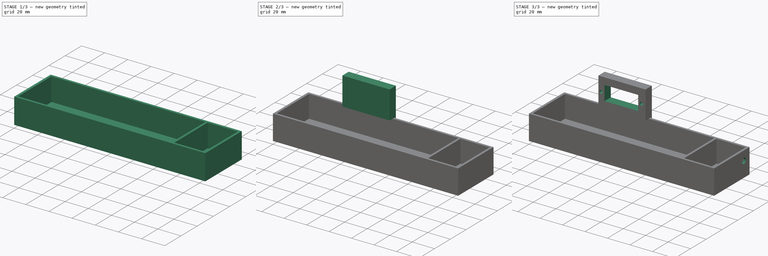
[diagram: build sequence overview — one tinted view per stage of 3, left to right]
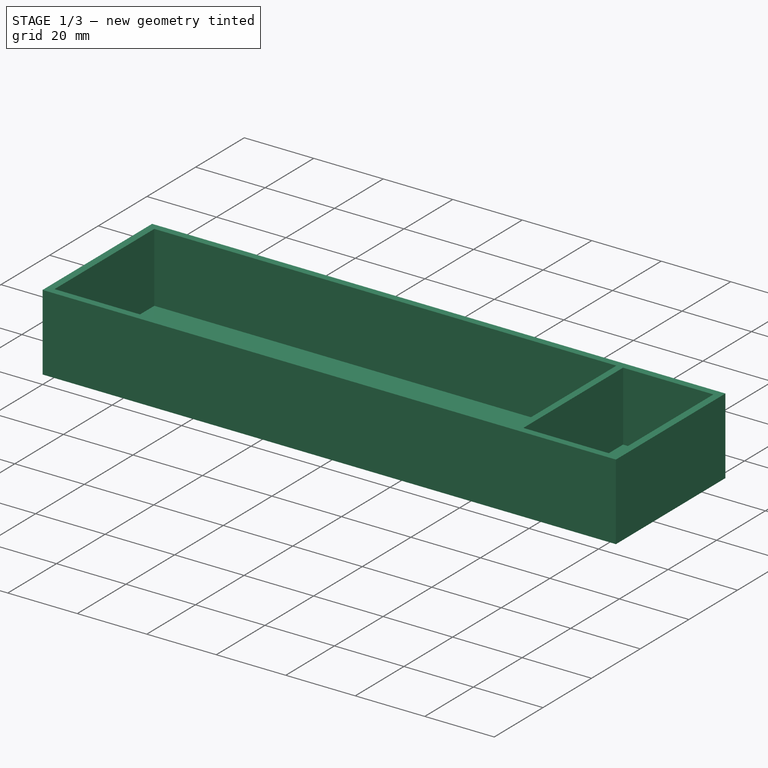
[diagram: stage 1 of 3 — iso view after this stage's code; geometry added in this stage tinted green]
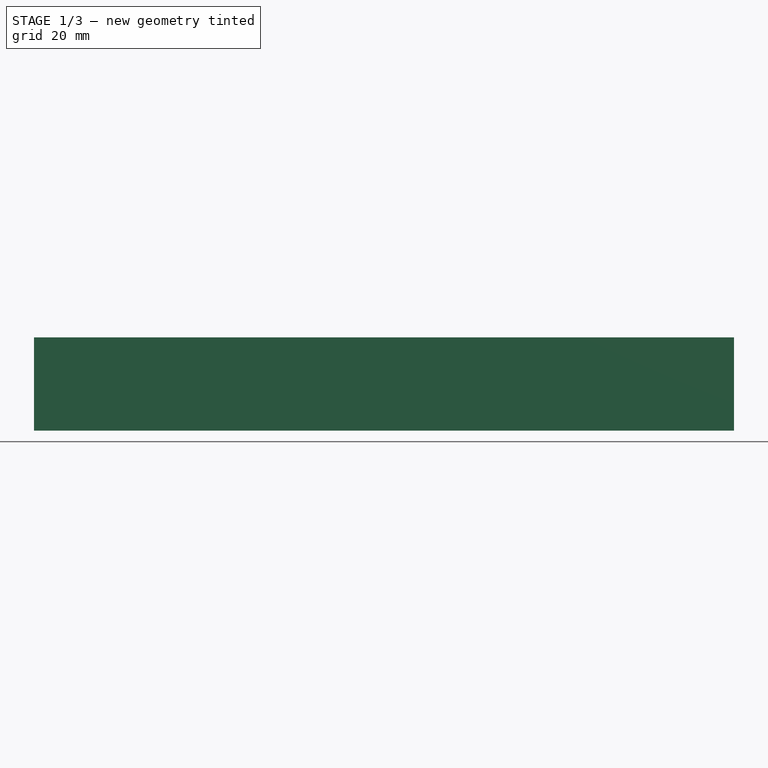
[diagram: stage 1 of 3 — front view after this stage's code; geometry added in this stage tinted green]
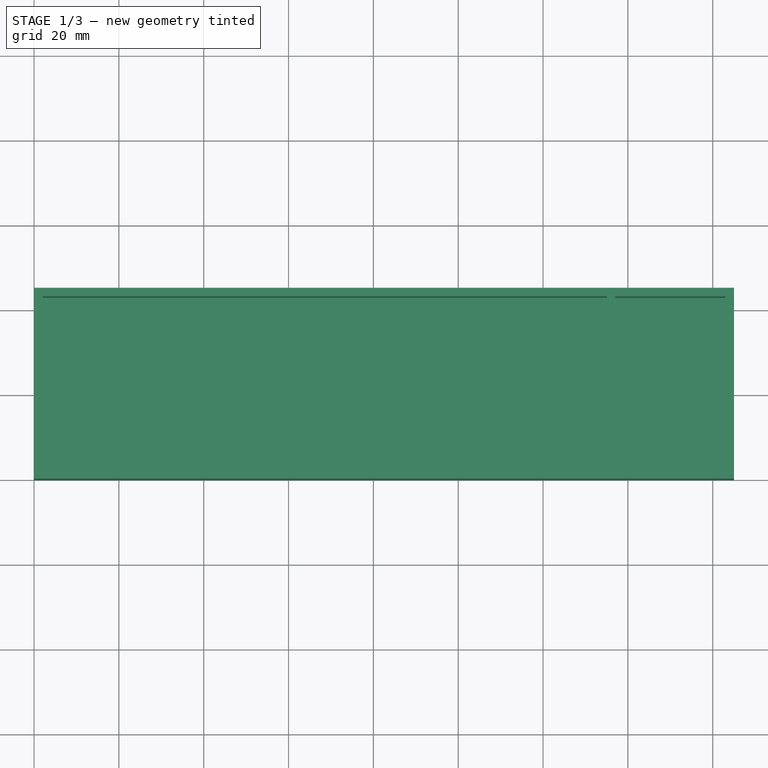
[diagram: stage 1 of 3 — top view after this stage's code; geometry added in this stage tinted green]
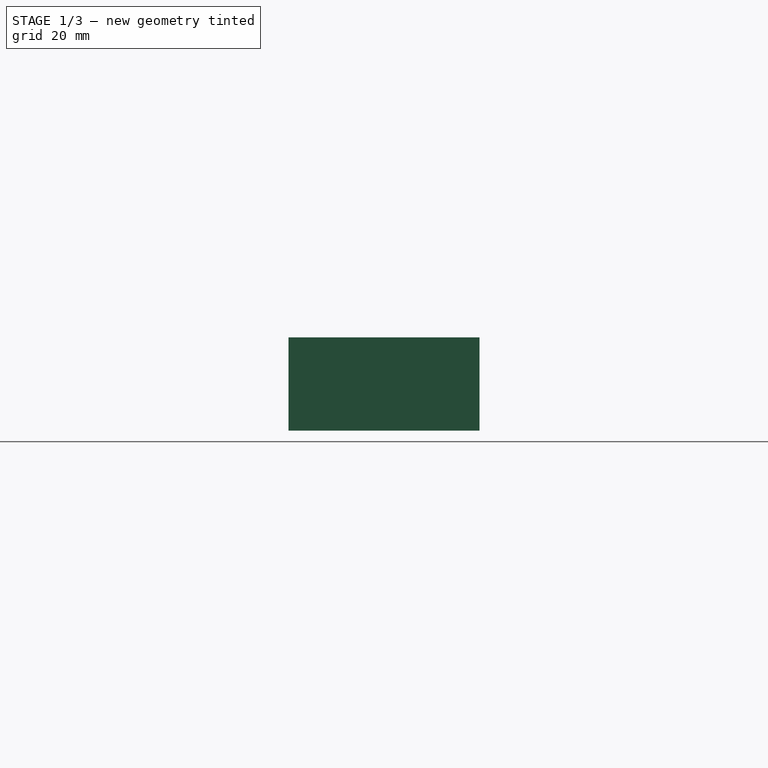
[diagram: stage 1 of 3 — right view after this stage's code; geometry added in this stage tinted green]
FCSTD DOCUMENT  (FreeCAD 0.16R6706 (Git))
Label: shade
License: All rights reserved
LicenseURL: http://en.wikipedia.org/wiki/All_rights_reserved
objects: Sketcher::SketchObject×8, PartDesign::Pocket×5, PartDesign::Pad×3
note: 24 computed .brp shape members not serialized (recipe doc carries the construction recipe); baked Part::Feature solids carry a one-line shape summary decoded from their .brp

FEATURE [Sketcher::SketchObject] Sketch
  sketch-geometry (4):
    g0: LineSegment StartX=0 StartY=45 StartZ=0 EndX=165 EndY=45 EndZ=0
    g1: LineSegment StartX=165 StartY=45 StartZ=0 EndX=165 EndY=0 EndZ=0
    g2: LineSegment StartX=165 StartY=0 StartZ=0 EndX=0 EndY=0 EndZ=0
    g3: LineSegment StartX=0 StartY=0 StartZ=0 EndX=0 EndY=45 EndZ=0
  constraints (11):
    c: Coincident(g0,g1)
    c: Coincident(g1,g2)
    c: Coincident(g2,g3)
    c: Coincident(g3,g0)
    c: Horizontal(g0)
    c: Horizontal(g2)
    c: Vertical(g1)
    c: Vertical(g3)
    c: Coincident(g2,g-1)
    c: DistanceX(g0,g0) = 165
    c: DistanceY(g1,g1) = 45
FEATURE [PartDesign::Pad] Pad
  Length = 22
  Length2 = 100
  Sketch = -> Sketch
  Type = 0
FEATURE [Sketcher::SketchObject] Sketch001
  Placement = pos=(0,0,22) rot=(0,0,1;0rad)
  Support = -> Pad [Face6]
  sketch-geometry (4):
    g0: LineSegment StartX=2.04825 StartY=42.9889 StartZ=0 EndX=135.048 EndY=42.9889 EndZ=0
    g1: LineSegment StartX=135.048 StartY=42.9889 StartZ=0 EndX=135.048 EndY=1.9889 EndZ=0
    g2: LineSegment StartX=135.048 StartY=1.9889 StartZ=0 EndX=2.04825 EndY=1.9889 EndZ=0
    g3: LineSegment StartX=2.04825 StartY=1.9889 StartZ=0 EndX=2.04825 EndY=42.9889 EndZ=0
  constraints (10):
    c: Coincident(g0,g1)
    c: Coincident(g1,g2)
    c: Coincident(g2,g3)
    c: Coincident(g3,g0)
    c: Horizontal(g0)
    c: Horizontal(g2)
    c: Vertical(g1)
    c: Vertical(g3)
    c: DistanceX(g0,g0) = 133
    c: DistanceY(g1,g1) = 41
FEATURE [PartDesign::Pocket] Pocket
  Length = 20
  Sketch = -> Sketch001
  Type = 0
FEATURE [Sketcher::SketchObject] Sketch002
  Placement = pos=(0,0,22) rot=(0,0,1;0rad)
  Support = -> Pocket [Face5]
  sketch-geometry (4):
    g0: LineSegment StartX=136.98 StartY=42.958 StartZ=0 EndX=162.98 EndY=42.958 EndZ=0
    g1: LineSegment StartX=162.98 StartY=42.958 StartZ=0 EndX=162.98 EndY=1.95803 EndZ=0
    g2: LineSegment StartX=162.98 StartY=1.95803 StartZ=0 EndX=136.98 EndY=1.95803 EndZ=0
    g3: LineSegment StartX=136.98 StartY=1.95803 StartZ=0 EndX=136.98 EndY=42.958 EndZ=0
  constraints (10):
    c: Coincident(g0,g1)
    c: Coincident(g1,g2)
    c: Coincident(g2,g3)
    c: Coincident(g3,g0)
    c: Horizontal(g0)
    c: Horizontal(g2)
    c: Vertical(g1)
    c: Vertical(g3)
    c: DistanceX(g0,g0) = 26
    c: DistanceY(g3,g3) = 41
FEATURE [PartDesign::Pocket] Pocket001
  Length = 20
  Sketch = -> Sketch002
  Type = 0
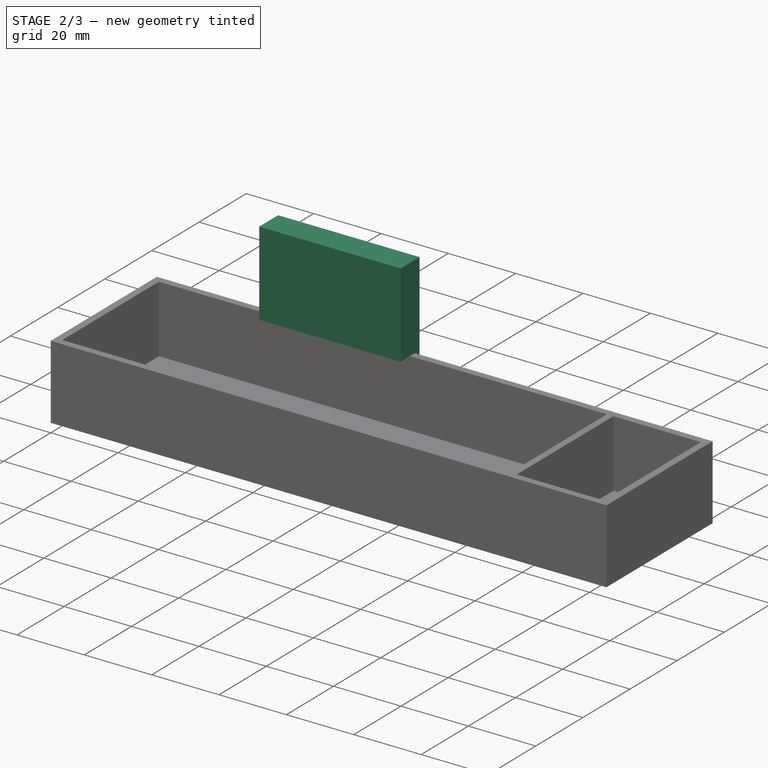
[diagram: stage 2 of 3 — iso view after this stage's code; geometry added in this stage tinted green]
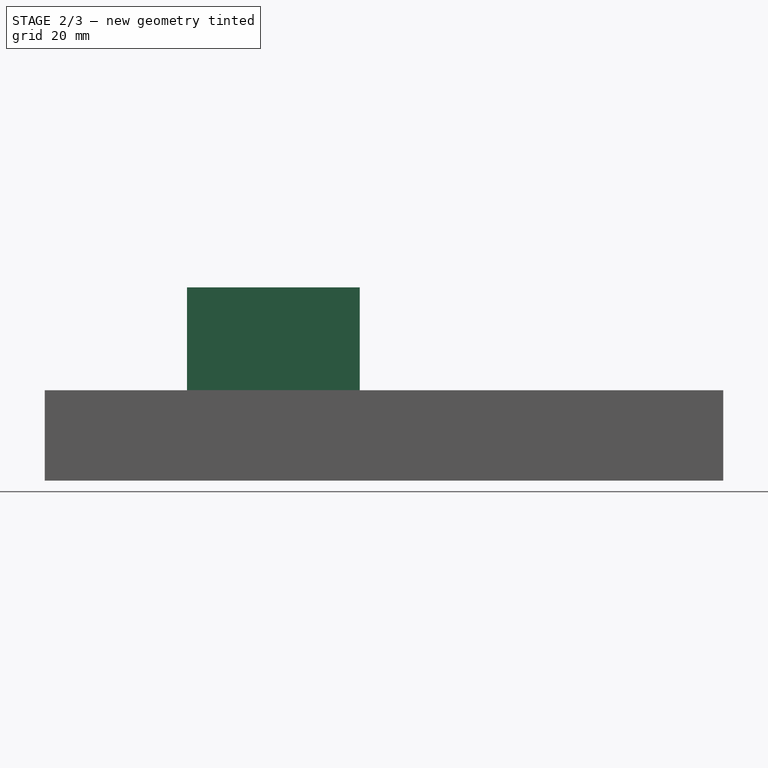
[diagram: stage 2 of 3 — front view after this stage's code; geometry added in this stage tinted green]
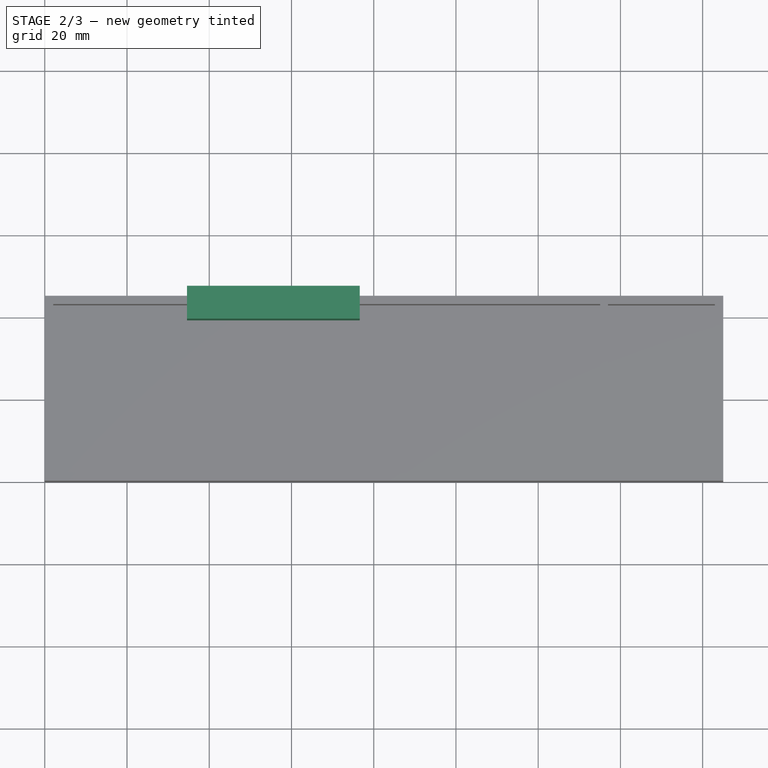
[diagram: stage 2 of 3 — top view after this stage's code; geometry added in this stage tinted green]
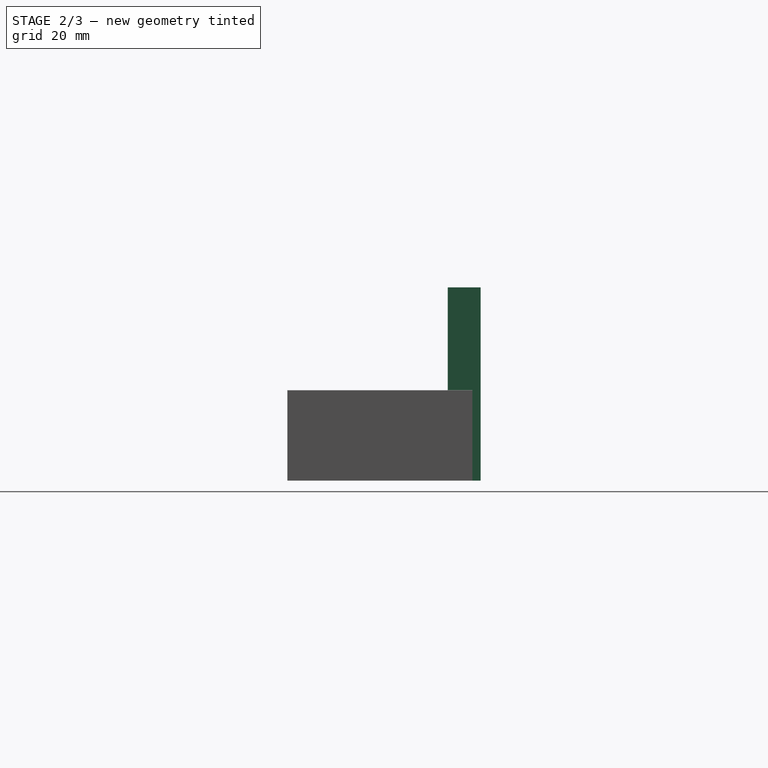
[diagram: stage 2 of 3 — right view after this stage's code; geometry added in this stage tinted green]
FEATURE [Sketcher::SketchObject] Sketch003
  Placement = pos=(0,45,0) rot=(0,0.707107,0.707107;3.14159rad)
  Support = -> Pocket001 [Face1]
  sketch-geometry (4):
    g0: LineSegment StartX=-76.6 StartY=47.01 StartZ=0 EndX=-34.6 EndY=47.01 EndZ=0
    g1: LineSegment StartX=-34.6 StartY=47.01 StartZ=0 EndX=-34.6 EndY=0.00995438 EndZ=0
    g2: LineSegment StartX=-34.6 StartY=0.00995438 StartZ=0 EndX=-76.6 EndY=0.00995438 EndZ=0
    g3: LineSegment StartX=-76.6 StartY=0.00995438 StartZ=0 EndX=-76.6 EndY=47.01 EndZ=0
  constraints (11):
    c: Coincident(g0,g1)
    c: Coincident(g1,g2)
    c: Coincident(g2,g3)
    c: Coincident(g3,g0)
    c: Horizontal(g0)
    c: Horizontal(g2)
    c: Vertical(g1)
    c: Vertical(g3)
    c: DistanceX(g0,g0) = 42
    c: Distance(g-1,g1) = 34.6
    c: DistanceY(g1,g1) = 47
FEATURE [PartDesign::Pad] Pad001
  Length = 2
  Length2 = 100
  Sketch = -> Sketch003
  Type = 0
FEATURE [Sketcher::SketchObject] Sketch008
  Placement = pos=(0,45,0) rot=(1,0,0;1.5708rad)
  Support = -> Pad001 [Face10]
  sketch-geometry (4):
    g0: LineSegment StartX=34.5985 StartY=47.0087 StartZ=0 EndX=76.5985 EndY=47.0087 EndZ=0
    g1: LineSegment StartX=76.5985 StartY=47.0087 StartZ=0 EndX=76.5985 EndY=22.0087 EndZ=0
    g2: LineSegment StartX=76.5985 StartY=22.0087 StartZ=0 EndX=34.5985 EndY=22.0087 EndZ=0
    g3: LineSegment StartX=34.5985 StartY=22.0087 StartZ=0 EndX=34.5985 EndY=47.0087 EndZ=0
  constraints (10):
    c: Coincident(g0,g1)
    c: Coincident(g1,g2)
    c: Coincident(g2,g3)
    c: Coincident(g3,g0)
    c: Horizontal(g0)
    c: Horizontal(g2)
    c: Vertical(g1)
    c: Vertical(g3)
    c: DistanceX(g0,g0) = 42
    c: DistanceY(g1,g1) = 25
FEATURE [PartDesign::Pad] Pad002
  Length = 6
  Length2 = 100
  Sketch = -> Sketch008
  Type = 0
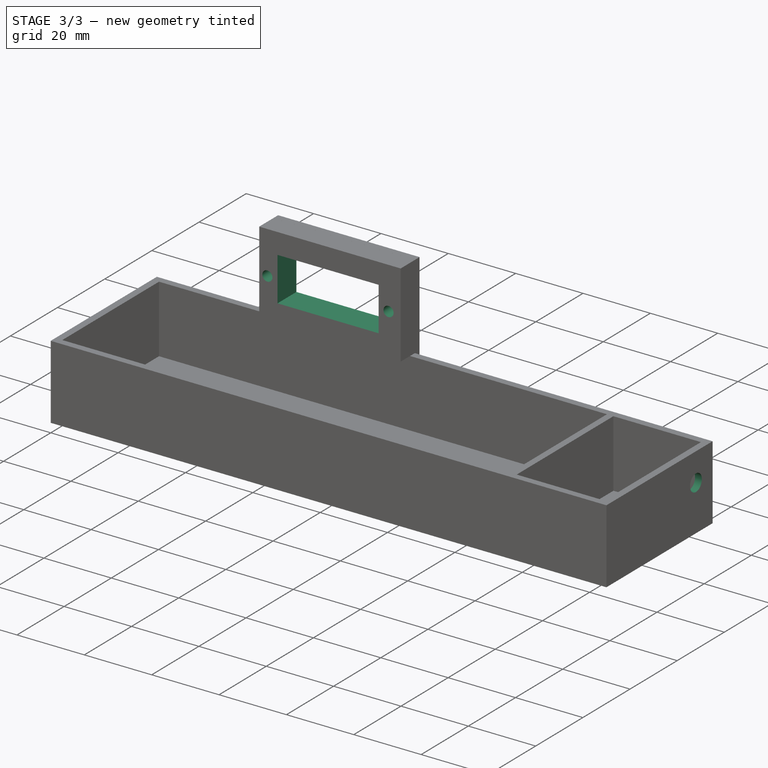
[diagram: stage 3 of 3 — iso view after this stage's code; geometry added in this stage tinted green]
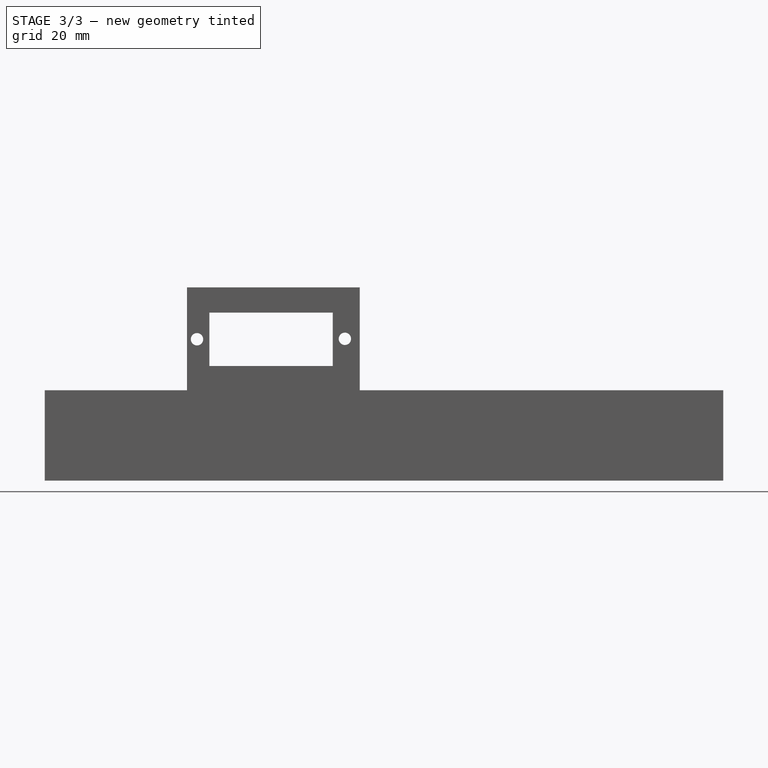
[diagram: stage 3 of 3 — front view after this stage's code; geometry added in this stage tinted green]
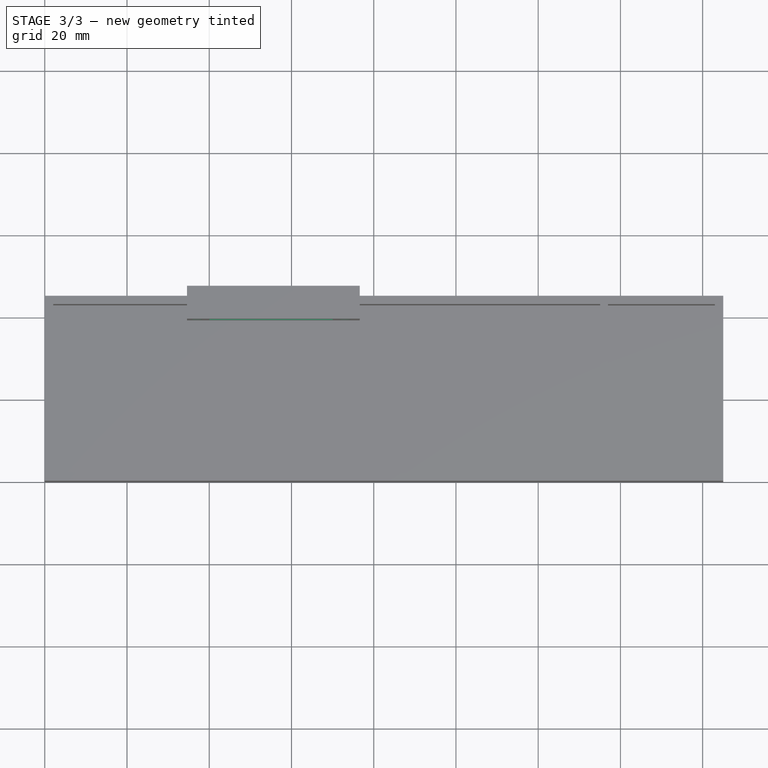
[diagram: stage 3 of 3 — top view after this stage's code; geometry added in this stage tinted green]
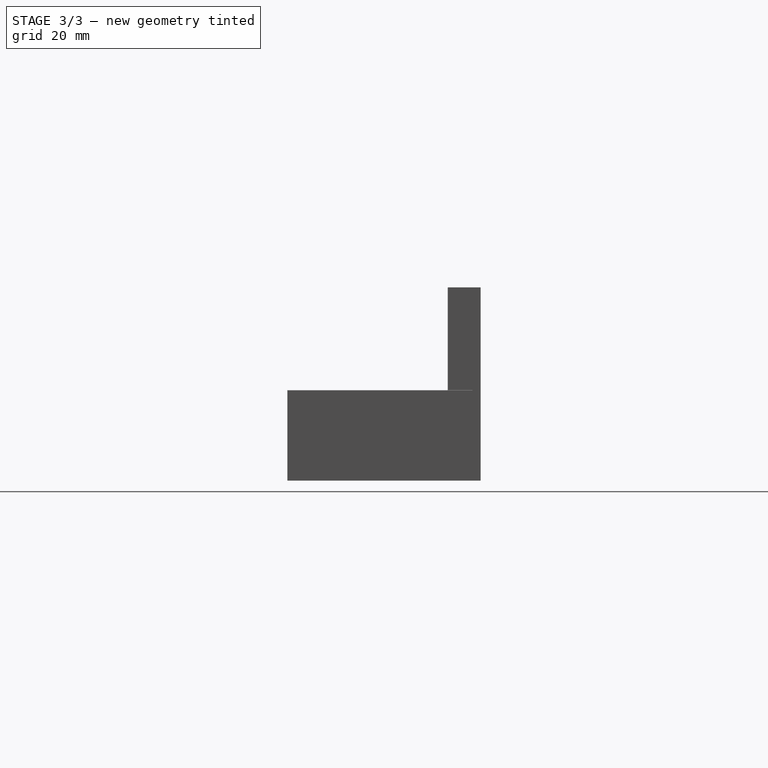
[diagram: stage 3 of 3 — right view after this stage's code; geometry added in this stage tinted green]
FEATURE [Sketcher::SketchObject] Sketch005
  Placement = pos=(0,39,0) rot=(1,0,0;1.5708rad)
  Support = -> Pad002 [Face28]
  sketch-geometry (4):
    g0: LineSegment StartX=40.0357 StartY=40.8722 StartZ=0 EndX=70.0357 EndY=40.8722 EndZ=0
    g1: LineSegment StartX=70.0357 StartY=40.8722 StartZ=0 EndX=70.0357 EndY=27.8722 EndZ=0
    g2: LineSegment StartX=70.0357 StartY=27.8722 StartZ=0 EndX=40.0357 EndY=27.8722 EndZ=0
    g3: LineSegment StartX=40.0357 StartY=27.8722 StartZ=0 EndX=40.0357 EndY=40.8722 EndZ=0
  constraints (10):
    c: Coincident(g0,g1)
    c: Coincident(g1,g2)
    c: Coincident(g2,g3)
    c: Coincident(g3,g0)
    c: Horizontal(g0)
    c: Horizontal(g2)
    c: Vertical(g1)
    c: Vertical(g3)
    c: DistanceX(g0,g0) = 30
    c: DistanceY(g1,g1) = 13
FEATURE [PartDesign::Pocket] Pocket002
  Length = 5
  Sketch = -> Sketch005
  Type = 1
FEATURE [Sketcher::SketchObject] Sketch009
  Placement = pos=(0,39,0) rot=(1,0,0;1.5708rad)
  Support = -> Pocket002 [Face32]
  sketch-geometry (2):
    g0: Circle CenterX=37.0219 CenterY=34.3907 CenterZ=0 NormalX=0 NormalY=0 NormalZ=1 Radius=1.5
    g1: Circle CenterX=72.9892 CenterY=34.4938 CenterZ=0 NormalX=0 NormalY=0 NormalZ=1 Radius=1.5
  constraints (2):
    c: Radius(g0) = 1.5
    c: Radius(g1) = 1.5
FEATURE [PartDesign::Pocket] Pocket003
  Length = 5
  Sketch = -> Sketch009
  Type = 1
FEATURE [Sketcher::SketchObject] Sketch007
  Placement = pos=(165,0,0) rot=(0.57735,0.57735,0.57735;2.0944rad)
  Support = -> Pocket003 [Face3]
  sketch-geometry (1):
    g0: Circle CenterX=37.953 CenterY=13.5681 CenterZ=0 NormalX=0 NormalY=0 NormalZ=1 Radius=2.5
  constraints (1):
    c: Radius(g0) = 2.5
FEATURE [PartDesign::Pocket] Pocket004
  Length = 5
  Sketch = -> Sketch007
  Type = 0
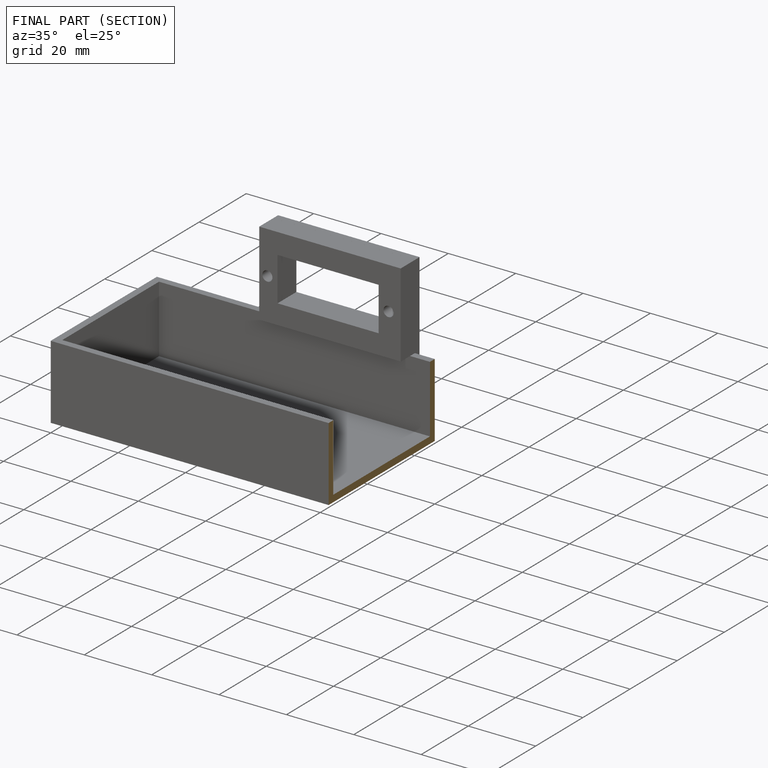
[diagram: finished part — half-section view (interior)]
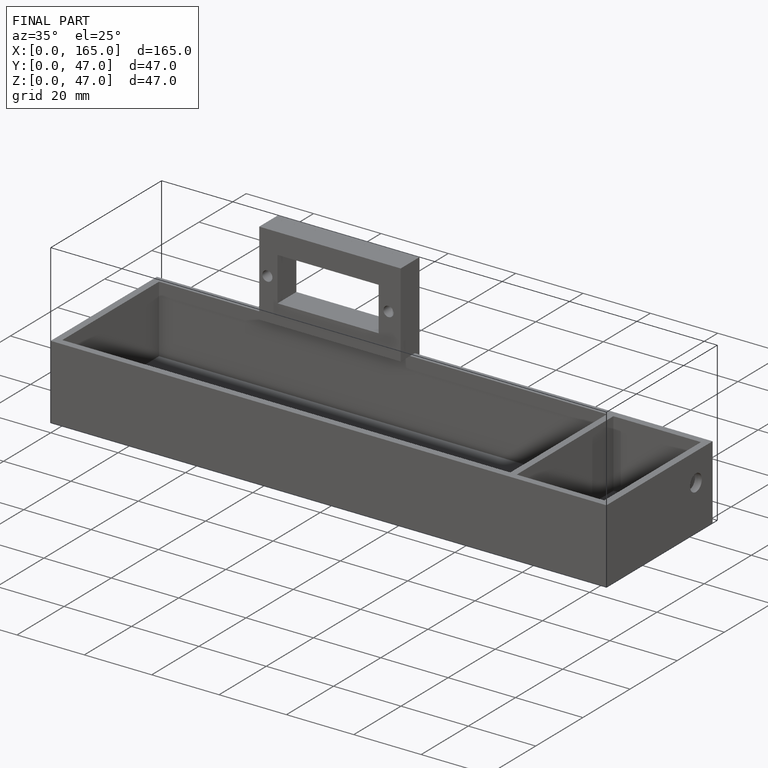
[diagram: finished part — iso view with bounding-box wireframe]
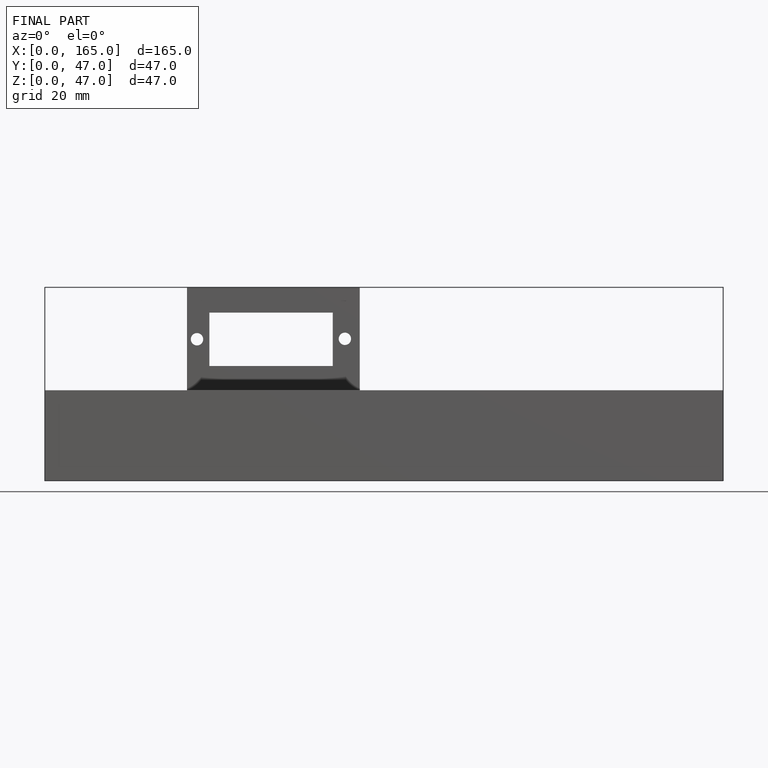
[diagram: finished part — front view with bounding-box wireframe]
